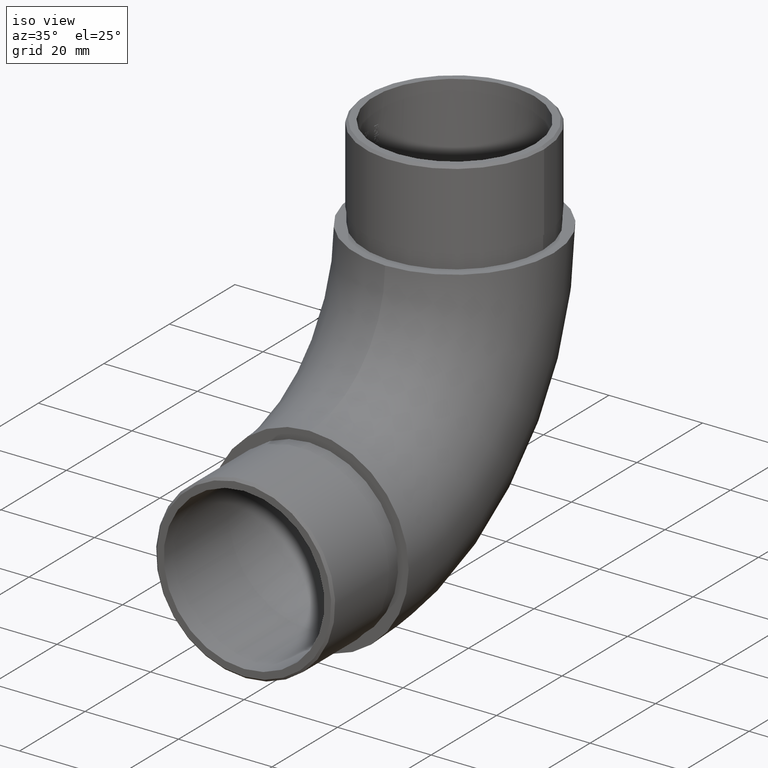
[diagram: clean part render]
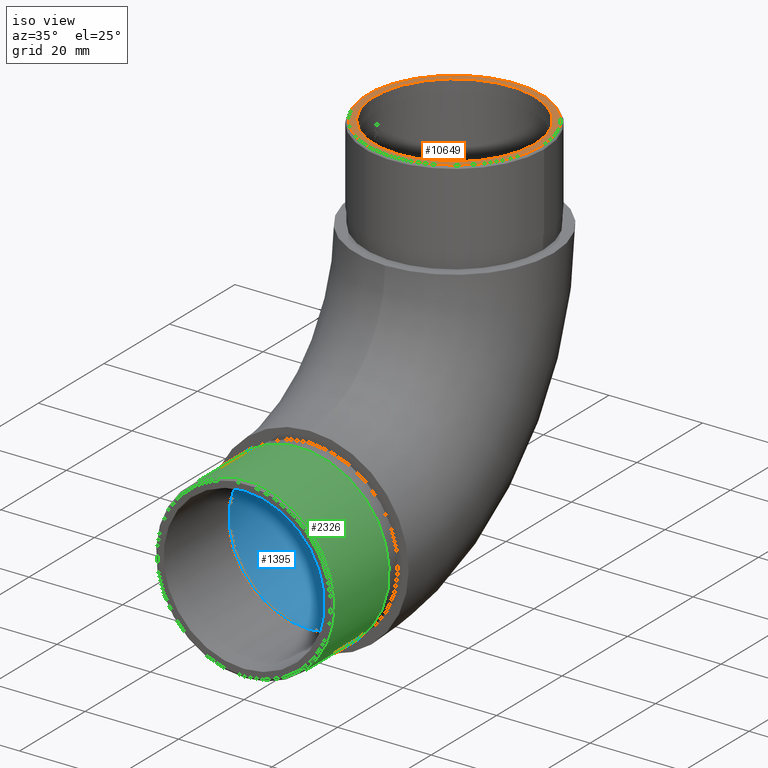
[diagram: same view with three faces highlighted in distinct colors, each labeled with its STEP entity id]
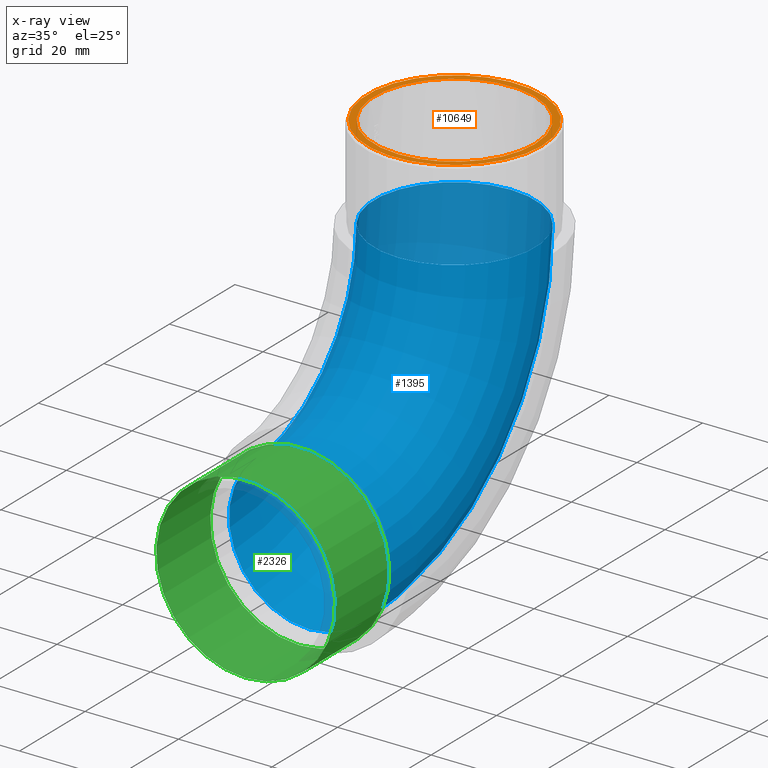
[diagram: x-ray of the same camera — body ghosted, the three highlighted faces saturated]
A machine part, iso view with three faces highlighted in distinct colors.
The next image is the same camera in x-ray (body ghosted, the three faces saturated) — at least one of them is partly hidden behind the body in this view.
Their STEP definitions:

[orange] entity #10649 — the highlighted planar face has unit normal (0, 0, 1).
#601 = VERTEX_POINT ( 'NONE', #1971 ) ;
#799 = PLANE ( 'NONE',  #8397 ) ;
#880 = DIRECTION ( 'NONE',  ( 0.0000000000000000000, 0.0000000000000000000, 1.000000000000000000 ) ) ;
#1165 = DIRECTION ( 'NONE',  ( 1.000000000000000000, 0.0000000000000000000, 0.0000000000000000000 ) ) ;
#1380 = AXIS2_PLACEMENT_3D ( 'NONE', #4798, #4044, #1165 ) ;
#1971 = CARTESIAN_POINT ( 'NONE',  ( 18.64999999999999900, 44.29999999999999000, 85.50000000000000000 ) ) ;
#2581 = EDGE_CURVE ( 'NONE', #5230, #5230, #2631, .T. ) ;
#2631 = CIRCLE ( 'NONE', #1380, 17.19999999999999600 ) ;
#3897 = CARTESIAN_POINT ( 'NONE',  ( 0.0000000000000000000, 44.29999999999999000, 85.50000000000000000 ) ) ;
#4044 = DIRECTION ( 'NONE',  ( 0.0000000000000000000, 0.0000000000000000000, 1.000000000000000000 ) ) ;
#4457 = DIRECTION ( 'NONE',  ( 1.000000000000000000, 0.0000000000000000000, -0.0000000000000000000 ) ) ;
#4798 = CARTESIAN_POINT ( 'NONE',  ( 0.0000000000000000000, 44.29999999999999000, 85.50000000000000000 ) ) ;
#5230 = VERTEX_POINT ( 'NONE', #11329 ) ;
#6443 = CARTESIAN_POINT ( 'NONE',  ( 0.0000000000000000000, 44.29999999999999000, 85.50000000000000000 ) ) ;
#6468 = EDGE_LOOP ( 'NONE', ( #11068 ) ) ;
#6716 = DIRECTION ( 'NONE',  ( 0.0000000000000000000, 0.0000000000000000000, 1.000000000000000000 ) ) ;
#7327 = ORIENTED_EDGE ( 'NONE', *, *, #2581, .F. ) ;
#7770 = AXIS2_PLACEMENT_3D ( 'NONE', #3897, #6716, #10526 ) ;
#7883 = FACE_OUTER_BOUND ( 'NONE', #6468, .T. ) ;
#8397 = AXIS2_PLACEMENT_3D ( 'NONE', #6443, #880, #4457 ) ;
#8876 = EDGE_CURVE ( 'NONE', #601, #601, #9536, .T. ) ;
#9536 = CIRCLE ( 'NONE', #7770, 18.64999999999999900 ) ;
#10526 = DIRECTION ( 'NONE',  ( 1.000000000000000000, 0.0000000000000000000, 0.0000000000000000000 ) ) ;
#10649 = ADVANCED_FACE ( 'NONE', ( #7883, #11512 ), #799, .T. ) ;
#11068 = ORIENTED_EDGE ( 'NONE', *, *, #8876, .T. ) ;
#11329 = CARTESIAN_POINT ( 'NONE',  ( 17.19999999999999600, 44.29999999999999000, 85.50000000000000000 ) ) ;
#11512 = FACE_BOUND ( 'NONE', #11556, .T. ) ;
#11556 = EDGE_LOOP ( 'NONE', ( #7327 ) ) ;

[blue] entity #1395 — the highlighted toroidal blend (fillet) surface has major radius 44.3 mm and minor (blend) radius 17.2 mm.
#163 = CIRCLE ( 'NONE', #2696, 17.19999999999999900 ) ;
#459 = FACE_OUTER_BOUND ( 'NONE', #4454, .T. ) ;
#1006 = DIRECTION ( 'NONE',  ( 0.0000000000000000000, 0.0000000000000000000, 1.000000000000000000 ) ) ;
#1277 = EDGE_CURVE ( 'NONE', #10181, #10181, #163, .T. ) ;
#1351 = CARTESIAN_POINT ( 'NONE',  ( 0.0000000000000000000, -6.938893903907228400E-015, 65.50000000000000000 ) ) ;
#1395 = ADVANCED_FACE ( 'NONE', ( #3369, #459 ), #9752, .F. ) ;
#1580 = CARTESIAN_POINT ( 'NONE',  ( 0.0000000000000000000, 44.29999999999999000, 65.50000000000000000 ) ) ;
#2216 = DIRECTION ( 'NONE',  ( -1.000000000000000000, -0.0000000000000000000, -0.0000000000000000000 ) ) ;
#2696 = AXIS2_PLACEMENT_3D ( 'NONE', #6664, #9329, #1006 ) ;
#3162 = ORIENTED_EDGE ( 'NONE', *, *, #10504, .T. ) ;
#3169 = DIRECTION ( 'NONE',  ( 0.0000000000000000000, 0.0000000000000000000, 1.000000000000000000 ) ) ;
#3369 = FACE_OUTER_BOUND ( 'NONE', #11420, .T. ) ;
#4441 = ORIENTED_EDGE ( 'NONE', *, *, #1277, .F. ) ;
#4454 = EDGE_LOOP ( 'NONE', ( #4441 ) ) ;
#4837 = CARTESIAN_POINT ( 'NONE',  ( 0.0000000000000000000, -6.938893903907228400E-015, 38.40000000000000600 ) ) ;
#5547 = AXIS2_PLACEMENT_3D ( 'NONE', #1351, #2216, #3169 ) ;
#5974 = VERTEX_POINT ( 'NONE', #9344 ) ;
#6664 = CARTESIAN_POINT ( 'NONE',  ( 0.0000000000000000000, -6.938893903907228400E-015, 21.20000000000000300 ) ) ;
#8032 = DIRECTION ( 'NONE',  ( 0.0000000000000000000, 6.123233995736766000E-017, 1.000000000000000000 ) ) ;
#8170 = CIRCLE ( 'NONE', #8257, 17.19999999999999900 ) ;
#8257 = AXIS2_PLACEMENT_3D ( 'NONE', #1580, #8032, #9892 ) ;
#9329 = DIRECTION ( 'NONE',  ( 0.0000000000000000000, 1.000000000000000000, 0.0000000000000000000 ) ) ;
#9344 = CARTESIAN_POINT ( 'NONE',  ( 0.0000000000000000000, 27.09999999999999100, 65.50000000000000000 ) ) ;
#9752 = TOROIDAL_SURFACE ( 'NONE', #5547, 44.29999999999999700, 17.19999999999999900 ) ;
#9892 = DIRECTION ( 'NONE',  ( 0.0000000000000000000, -1.000000000000000000, 0.0000000000000000000 ) ) ;
#10181 = VERTEX_POINT ( 'NONE', #4837 ) ;
#10504 = EDGE_CURVE ( 'NONE', #5974, #5974, #8170, .T. ) ;
#11420 = EDGE_LOOP ( 'NONE', ( #3162 ) ) ;

[green] entity #2326 — the highlighted cylindrical surface (bore or boss wall) has radius 19.15 mm, axis along (-0, 1, -0).
#441 = FACE_OUTER_BOUND ( 'NONE', #9598, .T. ) ;
#1838 = DIRECTION ( 'NONE',  ( -0.0000000000000000000, 1.000000000000000000, -0.0000000000000000000 ) ) ;
#2326 = ADVANCED_FACE ( 'NONE', ( #441, #7546 ), #3496, .T. ) ;
#2565 = AXIS2_PLACEMENT_3D ( 'NONE', #6497, #1838, #3658 ) ;
#2650 = AXIS2_PLACEMENT_3D ( 'NONE', #2979, #7723, #5852 ) ;
#2812 = AXIS2_PLACEMENT_3D ( 'NONE', #4431, #11934, #11894 ) ;
#2979 = CARTESIAN_POINT ( 'NONE',  ( 0.0000000000000000000, -19.49999999999998600, 21.20000000000000300 ) ) ;
#3496 = CYLINDRICAL_SURFACE ( 'NONE', #2565, 19.14999999999999500 ) ;
#3565 = ORIENTED_EDGE ( 'NONE', *, *, #11151, .T. ) ;
#3658 = DIRECTION ( 'NONE',  ( 0.0000000000000000000, 0.0000000000000000000, 1.000000000000000000 ) ) ;
#4431 = CARTESIAN_POINT ( 'NONE',  ( 0.0000000000000000000, -3.000000000000000000, 21.20000000000000300 ) ) ;
#4803 = CIRCLE ( 'NONE', #2812, 19.14999999999999900 ) ;
#5852 = DIRECTION ( 'NONE',  ( 0.0000000000000000000, 0.0000000000000000000, -1.000000000000000000 ) ) ;
#6497 = CARTESIAN_POINT ( 'NONE',  ( 0.0000000000000000000, -20.00000000000000000, 21.20000000000000300 ) ) ;
#6506 = EDGE_CURVE ( 'NONE', #9301, #9301, #8824, .T. ) ;
#6557 = CARTESIAN_POINT ( 'NONE',  ( 0.0000000000000000000, -19.49999999999998600, 2.050000000000006500 ) ) ;
#7546 = FACE_OUTER_BOUND ( 'NONE', #7827, .T. ) ;
#7723 = DIRECTION ( 'NONE',  ( 0.0000000000000000000, 1.000000000000000000, 0.0000000000000000000 ) ) ;
#7827 = EDGE_LOOP ( 'NONE', ( #3565 ) ) ;
#8824 = CIRCLE ( 'NONE', #2650, 19.14999999999999900 ) ;
#9301 = VERTEX_POINT ( 'NONE', #6557 ) ;
#9598 = EDGE_LOOP ( 'NONE', ( #11997 ) ) ;
#9891 = VERTEX_POINT ( 'NONE', #10241 ) ;
#10241 = CARTESIAN_POINT ( 'NONE',  ( 0.0000000000000000000, -3.000000000000000000, 2.050000000000006500 ) ) ;
#11151 = EDGE_CURVE ( 'NONE', #9891, #9891, #4803, .T. ) ;
#11894 = DIRECTION ( 'NONE',  ( 0.0000000000000000000, 0.0000000000000000000, -1.000000000000000000 ) ) ;
#11934 = DIRECTION ( 'NONE',  ( 0.0000000000000000000, -1.000000000000000000, 0.0000000000000000000 ) ) ;
#11997 = ORIENTED_EDGE ( 'NONE', *, *, #6506, .T. ) ;